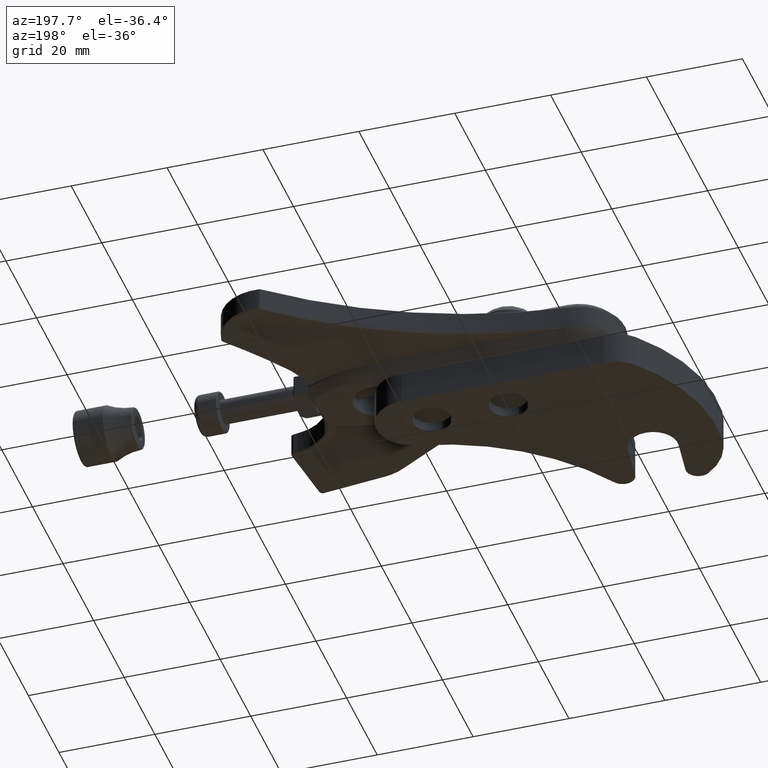
[diagram: clean part render]
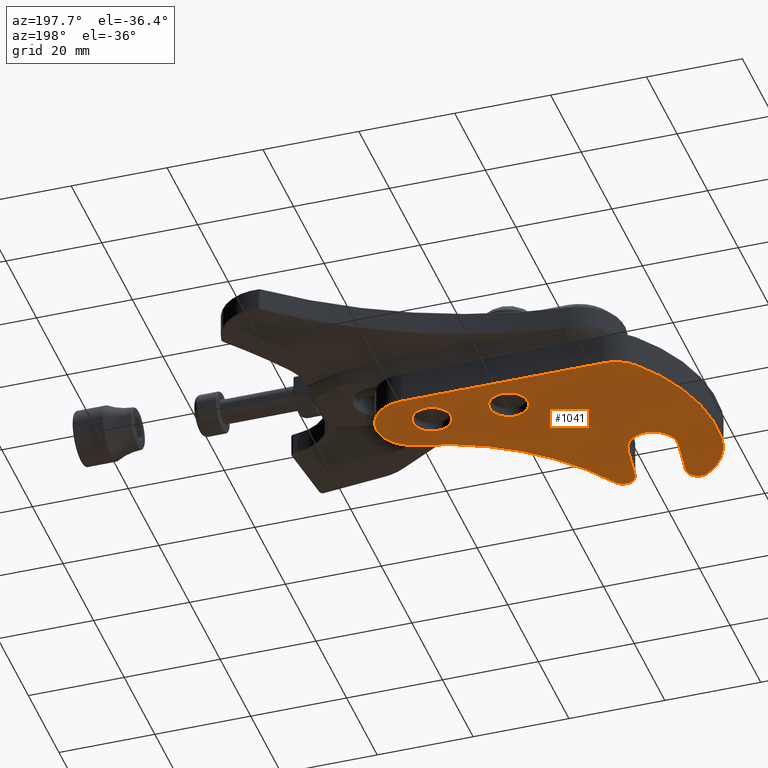
[diagram: same view with one face highlighted and labeled with its STEP entity id]
A machine part, auxiliary view. The second image highlights one B-rep face of the part: STEP entity #1041.
In plain terms, the highlighted planar face has unit normal (0, 0, 1).
Its self-contained STEP definition (entity closure, byte-faithful):
#23 = CARTESIAN_POINT ( 'NONE',  ( 5.818432531880000100, -1.956146148624999600, 0.0000000000000000000 ) ) ;
#24 = DIRECTION ( 'NONE',  ( 0.0000000000000000000, 0.0000000000000000000, 1.000000000000000000 ) ) ;
#25 = DIRECTION ( 'NONE',  ( 1.000000000000000000, 0.0000000000000000000, 0.0000000000000000000 ) ) ;
#31 = CARTESIAN_POINT ( 'NONE',  ( 3.754984335640991800, -3.050469585540007700, 0.0000000000000000000 ) ) ;
#32 = DIRECTION ( 'NONE',  ( -0.0000000000000000000, -0.0000000000000000000, -1.000000000000000000 ) ) ;
#33 = DIRECTION ( 'NONE',  ( 1.000000000000000000, 0.0000000000000000000, 0.0000000000000000000 ) ) ;
#47 = CARTESIAN_POINT ( 'NONE',  ( 5.482609450716990900, -0.4839631239440065300, 0.0000000000000000000 ) ) ;
#48 = DIRECTION ( 'NONE',  ( 0.0000000000000000000, 0.0000000000000000000, 1.000000000000000000 ) ) ;
#49 = DIRECTION ( 'NONE',  ( 1.000000000000000000, 0.0000000000000000000, 0.0000000000000000000 ) ) ;
#54 = CARTESIAN_POINT ( 'NONE',  ( 4.621306205145999400, -0.6521396501029995700, 0.0000000000000000000 ) ) ;
#66 = DIRECTION ( 'NONE',  ( 0.9326616697853414900, 0.3607522830325797800, -0.0000000000000000000 ) ) ;
#70 = CARTESIAN_POINT ( 'NONE',  ( 4.549155748539999600, -0.4656073161459999300, 0.0000000000000000000 ) ) ;
#71 = CARTESIAN_POINT ( 'NONE',  ( 4.200256271273000100, -0.4933411491220000000, 0.0000000000000000000 ) ) ;
#72 = DIRECTION ( 'NONE',  ( 0.0000000000000000000, 0.0000000000000000000, 1.000000000000000000 ) ) ;
#73 = DIRECTION ( 'NONE',  ( 1.000000000000000000, 0.0000000000000000000, 0.0000000000000000000 ) ) ;
#78 = CARTESIAN_POINT ( 'NONE',  ( 5.678320915236000100, -1.341924091970000600, 0.0000000000000000000 ) ) ;
#79 = DIRECTION ( 'NONE',  ( 0.0000000000000000000, 0.0000000000000000000, 1.000000000000000000 ) ) ;
#80 = DIRECTION ( 'NONE',  ( 1.000000000000000000, 0.0000000000000000000, 0.0000000000000000000 ) ) ;
#90 = CARTESIAN_POINT ( 'NONE',  ( 4.200256271273000100, -0.4933411491220000000, 0.0000000000000000000 ) ) ;
#91 = DIRECTION ( 'NONE',  ( 0.0000000000000000000, 0.0000000000000000000, 1.000000000000000000 ) ) ;
#92 = DIRECTION ( 'NONE',  ( 1.000000000000000000, 0.0000000000000000000, 0.0000000000000000000 ) ) ;
#97 = CARTESIAN_POINT ( 'NONE',  ( 4.410413882921999700, -1.055372568212000100, 0.0000000000000000000 ) ) ;
#98 = DIRECTION ( 'NONE',  ( 0.0000000000000000000, 0.0000000000000000000, 1.000000000000000000 ) ) ;
#99 = DIRECTION ( 'NONE',  ( 1.000000000000000000, 0.0000000000000000000, 0.0000000000000000000 ) ) ;
#152 = AXIS2_PLACEMENT_3D ( 'NONE', #71, #72, #73 ) ;
#153 = AXIS2_PLACEMENT_3D ( 'NONE', #78, #79, #80 ) ;
#155 = AXIS2_PLACEMENT_3D ( 'NONE', #90, #91, #92 ) ;
#156 = AXIS2_PLACEMENT_3D ( 'NONE', #97, #98, #99 ) ;
#158 = AXIS2_PLACEMENT_3D ( 'NONE', #3071, #3072, #3073 ) ;
#159 = AXIS2_PLACEMENT_3D ( 'NONE', #3078, #3079, #3080 ) ;
#195 = AXIS2_PLACEMENT_3D ( 'NONE', #6582, #6580, #6584 ) ;
#798 = EDGE_CURVE ( 'NONE', #2567, #2583, #2994, .T. ) ;
#799 = EDGE_CURVE ( 'NONE', #2633, #2594, #2992, .T. ) ;
#800 = EDGE_CURVE ( 'NONE', #2574, #2609, #2995, .T. ) ;
#805 = EDGE_CURVE ( 'NONE', #2583, #2633, #2998, .T. ) ;
#808 = EDGE_CURVE ( 'NONE', #2621, #2585, #3002, .T. ) ;
#814 = EDGE_CURVE ( 'NONE', #2609, #2574, #3015, .T. ) ;
#817 = EDGE_CURVE ( 'NONE', #972, #978, #3020, .T. ) ;
#972 = VERTEX_POINT ( 'NONE', #7255 ) ;
#978 = VERTEX_POINT ( 'NONE', #7234 ) ;
#1041 = ADVANCED_FACE ( 'NONE', ( #5174, #5170, #5167 ), #6583, .F. ) ;
#1352 = ORIENTED_EDGE ( 'NONE', *, *, #4541, .T. ) ;
#1353 = ORIENTED_EDGE ( 'NONE', *, *, #817, .T. ) ;
#1354 = ORIENTED_EDGE ( 'NONE', *, *, #4552, .F. ) ;
#1355 = ORIENTED_EDGE ( 'NONE', *, *, #4562, .F. ) ;
#1356 = ORIENTED_EDGE ( 'NONE', *, *, #4529, .F. ) ;
#1357 = ORIENTED_EDGE ( 'NONE', *, *, #808, .F. ) ;
#1358 = ORIENTED_EDGE ( 'NONE', *, *, #4543, .F. ) ;
#1359 = ORIENTED_EDGE ( 'NONE', *, *, #4555, .F. ) ;
#1360 = ORIENTED_EDGE ( 'NONE', *, *, #4561, .F. ) ;
#1361 = ORIENTED_EDGE ( 'NONE', *, *, #4548, .F. ) ;
#1363 = ORIENTED_EDGE ( 'NONE', *, *, #4560, .F. ) ;
#1365 = ORIENTED_EDGE ( 'NONE', *, *, #4526, .F. ) ;
#1366 = ORIENTED_EDGE ( 'NONE', *, *, #798, .F. ) ;
#1367 = ORIENTED_EDGE ( 'NONE', *, *, #805, .F. ) ;
#1368 = ORIENTED_EDGE ( 'NONE', *, *, #799, .F. ) ;
#1369 = ORIENTED_EDGE ( 'NONE', *, *, #800, .T. ) ;
#1371 = ORIENTED_EDGE ( 'NONE', *, *, #814, .T. ) ;
#1860 = VERTEX_POINT ( 'NONE', #5461 ) ;
#1864 = VERTEX_POINT ( 'NONE', #5468 ) ;
#1873 = VERTEX_POINT ( 'NONE', #5479 ) ;
#1875 = VERTEX_POINT ( 'NONE', #5481 ) ;
#1892 = VERTEX_POINT ( 'NONE', #5498 ) ;
#1910 = EDGE_LOOP ( 'NONE', ( #1371, #1369 ) ) ;
#1912 = EDGE_LOOP ( 'NONE', ( #1353, #1352 ) ) ;
#1944 = EDGE_LOOP ( 'NONE', ( #1368, #1367, #1366, #1365, #1363, #1361, #1360, #1359, #1358, #1357, #1356, #1355, #1354 ) ) ;
#2567 = VERTEX_POINT ( 'NONE', #5534 ) ;
#2574 = VERTEX_POINT ( 'NONE', #5564 ) ;
#2583 = VERTEX_POINT ( 'NONE', #5572 ) ;
#2585 = VERTEX_POINT ( 'NONE', #5574 ) ;
#2594 = VERTEX_POINT ( 'NONE', #5583 ) ;
#2609 = VERTEX_POINT ( 'NONE', #4963 ) ;
#2621 = VERTEX_POINT ( 'NONE', #4975 ) ;
#2622 = VERTEX_POINT ( 'NONE', #4976 ) ;
#2628 = VERTEX_POINT ( 'NONE', #4982 ) ;
#2633 = VERTEX_POINT ( 'NONE', #4987 ) ;
#2992 = LINE ( 'NONE', #70, #2997 ) ;
#2994 = CIRCLE ( 'NONE', #152, 0.1000000000003497000 ) ;
#2995 = CIRCLE ( 'NONE', #153, 0.1560000000000001900 ) ;
#2997 = VECTOR ( 'NONE', #66, 39.37007874015748900 ) ;
#2998 = CIRCLE ( 'NONE', #155, 0.1000000000003497000 ) ;
#3002 = CIRCLE ( 'NONE', #156, 0.09999999999970443600 ) ;
#3015 = CIRCLE ( 'NONE', #158, 0.1560000000000001900 ) ;
#3020 = CIRCLE ( 'NONE', #159, 0.1560000000000001900 ) ;
#3071 = CARTESIAN_POINT ( 'NONE',  ( 5.678320915236000100, -1.341924091970000600, 0.0000000000000000000 ) ) ;
#3072 = DIRECTION ( 'NONE',  ( 0.0000000000000000000, 0.0000000000000000000, 1.000000000000000000 ) ) ;
#3073 = DIRECTION ( 'NONE',  ( 1.000000000000000000, 0.0000000000000000000, 0.0000000000000000000 ) ) ;
#3078 = CARTESIAN_POINT ( 'NONE',  ( 5.818432531880000100, -1.956146148624999600, 0.0000000000000000000 ) ) ;
#3079 = DIRECTION ( 'NONE',  ( 0.0000000000000000000, 0.0000000000000000000, 1.000000000000000000 ) ) ;
#3080 = DIRECTION ( 'NONE',  ( 1.000000000000000000, 0.0000000000000000000, 0.0000000000000000000 ) ) ;
#3314 = DIRECTION ( 'NONE',  ( 1.000000000000000000, 0.0000000000000000000, 0.0000000000000000000 ) ) ;
#3317 = DIRECTION ( 'NONE',  ( 0.0000000000000000000, 0.0000000000000000000, 1.000000000000000000 ) ) ;
#3506 = AXIS2_PLACEMENT_3D ( 'NONE', #7421, #7422, #7423 ) ;
#3508 = AXIS2_PLACEMENT_3D ( 'NONE', #7427, #3317, #3314 ) ;
#3516 = AXIS2_PLACEMENT_3D ( 'NONE', #23, #24, #25 ) ;
#3518 = AXIS2_PLACEMENT_3D ( 'NONE', #31, #32, #33 ) ;
#3522 = AXIS2_PLACEMENT_3D ( 'NONE', #47, #48, #49 ) ;
#3524 = AXIS2_PLACEMENT_3D ( 'NONE', #54, #5098, #5099 ) ;
#3527 = AXIS2_PLACEMENT_3D ( 'NONE', #4751, #4752, #4753 ) ;
#3530 = AXIS2_PLACEMENT_3D ( 'NONE', #4766, #4767, #4768 ) ;
#3774 = CIRCLE ( 'NONE', #3524, 0.2000000014898751000 ) ;
#3778 = CIRCLE ( 'NONE', #3527, 0.3000000000000006000 ) ;
#3785 = CIRCLE ( 'NONE', #3530, 1.500000000000197600 ) ;
#3786 = LINE ( 'NONE', #4759, #3788 ) ;
#3787 = LINE ( 'NONE', #4769, #3790 ) ;
#3788 = VECTOR ( 'NONE', #4760, 39.37007874015748100 ) ;
#3790 = VECTOR ( 'NONE', #4770, 39.37007874015748900 ) ;
#4438 = CIRCLE ( 'NONE', #3506, 0.5500000119209993400 ) ;
#4443 = CIRCLE ( 'NONE', #3508, 0.09999999999970443600 ) ;
#4459 = CIRCLE ( 'NONE', #3516, 0.1560000000000001900 ) ;
#4461 = CIRCLE ( 'NONE', #3518, 1.999999999999847000 ) ;
#4526 = EDGE_CURVE ( 'NONE', #2628, #2567, #4438, .T. ) ;
#4529 = EDGE_CURVE ( 'NONE', #1875, #2621, #4443, .T. ) ;
#4541 = EDGE_CURVE ( 'NONE', #978, #972, #4459, .T. ) ;
#4543 = EDGE_CURVE ( 'NONE', #2585, #2622, #4461, .T. ) ;
#4548 = EDGE_CURVE ( 'NONE', #1892, #1864, #7149, .T. ) ;
#4552 = EDGE_CURVE ( 'NONE', #2594, #1873, #3774, .T. ) ;
#4555 = EDGE_CURVE ( 'NONE', #2622, #1860, #3778, .T. ) ;
#4560 = EDGE_CURVE ( 'NONE', #1864, #2628, #3785, .T. ) ;
#4561 = EDGE_CURVE ( 'NONE', #1860, #1892, #3786, .T. ) ;
#4562 = EDGE_CURVE ( 'NONE', #1873, #1875, #3787, .T. ) ;
#4751 = CARTESIAN_POINT ( 'NONE',  ( 5.853126836953999900, -2.108239229320000500, 0.0000000000000000000 ) ) ;
#4752 = DIRECTION ( 'NONE',  ( 0.0000000000000000000, 0.0000000000000000000, 1.000000000000000000 ) ) ;
#4753 = DIRECTION ( 'NONE',  ( 1.000000000000000000, 0.0000000000000000000, 0.0000000000000000000 ) ) ;
#4759 = CARTESIAN_POINT ( 'NONE',  ( 5.775096144362187500, -0.4172433064944154900, 0.0000000000000000000 ) ) ;
#4760 = DIRECTION ( 'NONE',  ( -0.2223993914988268400, 0.9749556454839118900, -0.0000000000000000000 ) ) ;
#4766 = CARTESIAN_POINT ( 'NONE',  ( 4.931666700680999300, -1.550012881780005000, 0.0000000000000000000 ) ) ;
#4767 = DIRECTION ( 'NONE',  ( 0.0000000000000000000, 0.0000000000000000000, 1.000000000000000000 ) ) ;
#4768 = DIRECTION ( 'NONE',  ( 1.000000000000000000, 0.0000000000000000000, 0.0000000000000000000 ) ) ;
#4769 = CARTESIAN_POINT ( 'NONE',  ( 4.374338654618999700, -0.9621064012339999300, 0.0000000000000000000 ) ) ;
#4770 = DIRECTION ( 'NONE',  ( -0.9326616729269935300, -0.3607522749103898000, -0.0000000000000000000 ) ) ;
#4963 = CARTESIAN_POINT ( 'NONE',  ( 5.522320915236000400, -1.341924091970000600, 0.0000000000000000000 ) ) ;
#4975 = CARTESIAN_POINT ( 'NONE',  ( 4.310413882922294900, -1.055372568212000100, 0.0000000000000000000 ) ) ;
#4976 = CARTESIAN_POINT ( 'NONE',  ( 5.579456075913273400, -2.231138841000769100, 0.0000000000000000000 ) ) ;
#4982 = CARTESIAN_POINT ( 'NONE',  ( 4.441623806845203900, -0.1323182876581942000, 0.0000000000000000000 ) ) ;
#4987 = CARTESIAN_POINT ( 'NONE',  ( 4.236331499576070100, -0.5866073161006065700, 0.0000000000000000000 ) ) ;
#5098 = DIRECTION ( 'NONE',  ( -0.0000000000000000000, -0.0000000000000000000, -1.000000000000000000 ) ) ;
#5099 = DIRECTION ( 'NONE',  ( 1.000000000000000000, 0.0000000000000000000, 0.0000000000000000000 ) ) ;
#5167 = FACE_BOUND ( 'NONE', #1912, .T. ) ;
#5170 = FACE_OUTER_BOUND ( 'NONE', #1944, .T. ) ;
#5174 = FACE_BOUND ( 'NONE', #1910, .T. ) ;
#5461 = CARTESIAN_POINT ( 'NONE',  ( 6.145613530599188600, -2.041519411870415200, 0.0000000000000000000 ) ) ;
#5468 = CARTESIAN_POINT ( 'NONE',  ( 5.620345138226624300, -0.2174506844847689000, 0.0000000000000000000 ) ) ;
#5479 = CARTESIAN_POINT ( 'NONE',  ( 4.693456826381020800, -0.8386719235770575500, 0.0000000000000000000 ) ) ;
#5481 = CARTESIAN_POINT ( 'NONE',  ( 4.374338654618893200, -0.9621064012337241500, 0.0000000000000000000 ) ) ;
#5498 = CARTESIAN_POINT ( 'NONE',  ( 5.775096144362304800, -0.4172433064943889000, 0.0000000000000000000 ) ) ;
#5534 = CARTESIAN_POINT ( 'NONE',  ( 4.106689621779725700, -0.4580525942823264800, 0.0000000000000000000 ) ) ;
#5564 = CARTESIAN_POINT ( 'NONE',  ( 5.834320915236000700, -1.341924091970000600, 0.0000000000000000000 ) ) ;
#5572 = CARTESIAN_POINT ( 'NONE',  ( 4.100256271272650500, -0.4933411491220000000, 0.0000000000000000000 ) ) ;
#5574 = CARTESIAN_POINT ( 'NONE',  ( 4.379202952099031000, -1.150377188084925600, 0.0000000000000000000 ) ) ;
#5583 = CARTESIAN_POINT ( 'NONE',  ( 4.549155748002433200, -0.4656073147562168600, 0.0000000000000000000 ) ) ;
#6580 = DIRECTION ( 'NONE',  ( 0.0000000000000000000, 0.0000000000000000000, 1.000000000000000000 ) ) ;
#6582 = CARTESIAN_POINT ( 'NONE',  ( 5.853126836953999900, -2.108239229320000500, 0.0000000000000000000 ) ) ;
#6583 = PLANE ( 'NONE',  #195 ) ;
#6584 = DIRECTION ( 'NONE',  ( 1.000000000000000000, 0.0000000000000000000, -0.0000000000000000000 ) ) ;
#7149 = CIRCLE ( 'NONE', #3522, 0.3000000000001295500 ) ;
#7234 = CARTESIAN_POINT ( 'NONE',  ( 5.974432531879999800, -1.956146148624999600, 0.0000000000000000000 ) ) ;
#7255 = CARTESIAN_POINT ( 'NONE',  ( 5.662432531879999500, -1.956146148624999600, 0.0000000000000000000 ) ) ;
#7421 = CARTESIAN_POINT ( 'NONE',  ( 4.621306205145999400, -0.6521396501029995700, 0.0000000000000000000 ) ) ;
#7422 = DIRECTION ( 'NONE',  ( 0.0000000000000000000, 0.0000000000000000000, 1.000000000000000000 ) ) ;
#7423 = DIRECTION ( 'NONE',  ( 1.000000000000000000, 0.0000000000000000000, 0.0000000000000000000 ) ) ;
#7427 = CARTESIAN_POINT ( 'NONE',  ( 4.410413882921999700, -1.055372568212000100, 0.0000000000000000000 ) ) ;